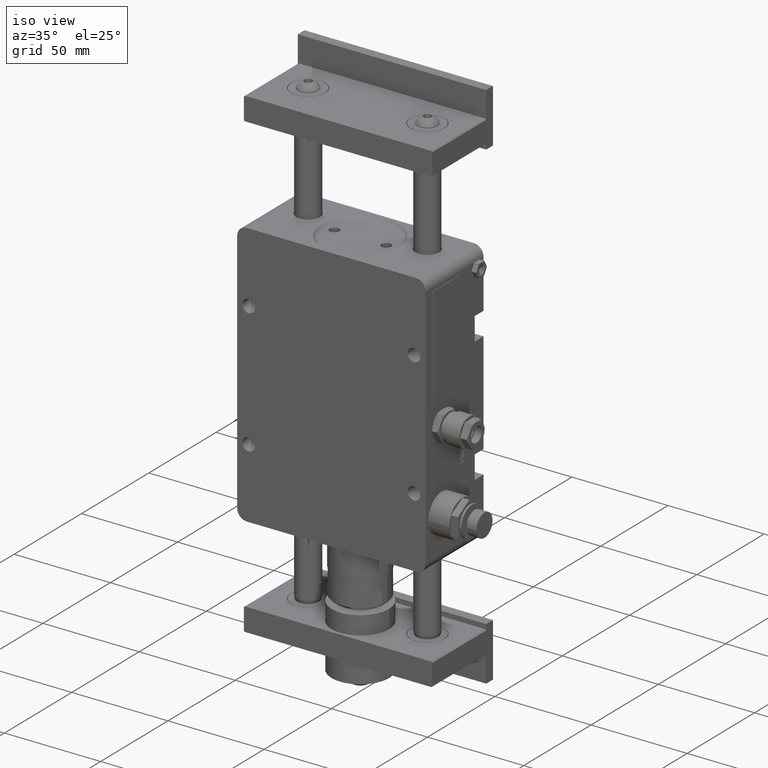
[diagram: clean part render]
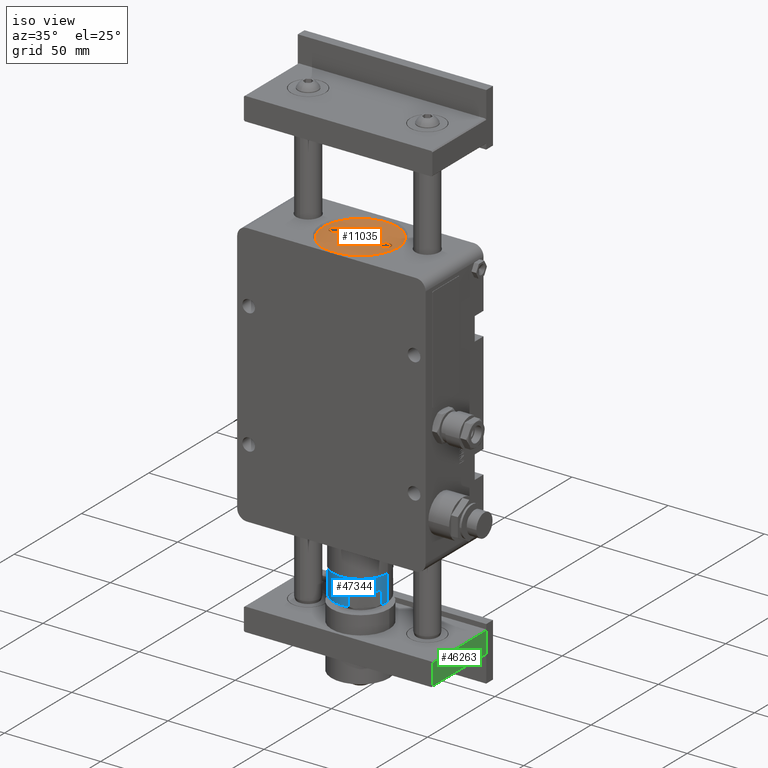
[diagram: same view with three faces highlighted in distinct colors, each labeled with its STEP entity id]
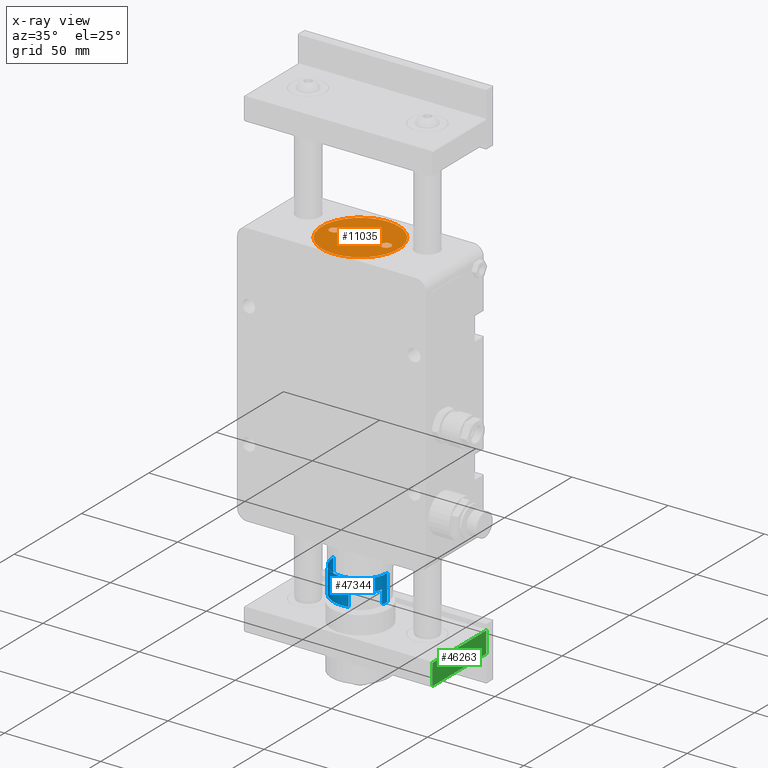
[diagram: x-ray of the same camera — body ghosted, the three highlighted faces saturated]
A machine part, iso view with three faces highlighted in distinct colors.
The next image is the same camera in x-ray (body ghosted, the three faces saturated) — at least one of them is partly hidden behind the body in this view.
Their STEP definitions:

[orange] entity #11035 — the highlighted planar face has unit normal (0, -0, -1).
#40 = ORIENTED_EDGE ( 'NONE', *, *, #48380, .F. ) ;
#671 = DIRECTION ( 'NONE',  ( -5.321418459584449281E-17, 1.476990324373995889E-32, 1.000000000000000000 ) ) ;
#733 = EDGE_LOOP ( 'NONE', ( #52822, #7169 ) ) ;
#1065 = CARTESIAN_POINT ( 'NONE',  ( 13.50000000000000000, 24.00000000000000000, 137.0000000000000000 ) ) ;
#1353 = EDGE_CURVE ( 'NONE', #38641, #21704, #10302, .T. ) ;
#2573 = DIRECTION ( 'NONE',  ( 0.000000000000000000, 1.000000000000000000, 0.000000000000000000 ) ) ;
#2911 = DIRECTION ( 'NONE',  ( 0.000000000000000000, -1.000000000000000000, 2.146269174704819951E-16 ) ) ;
#5834 = AXIS2_PLACEMENT_3D ( 'NONE', #42395, #671, #50914 ) ;
#5938 = CARTESIAN_POINT ( 'NONE',  ( -13.50000000000000000, 19.00000000000000000, 137.0000000000000000 ) ) ;
#6407 = CARTESIAN_POINT ( 'NONE',  ( 13.50000000000000000, 21.50000000000000000, 137.0000000000000000 ) ) ;
#7169 = ORIENTED_EDGE ( 'NONE', *, *, #8129, .F. ) ;
#7290 = CIRCLE ( 'NONE', #14316, 2.499999999999998668 ) ;
#8129 = EDGE_CURVE ( 'NONE', #21704, #38641, #33116, .T. ) ;
#8597 = DIRECTION ( 'NONE',  ( 0.000000000000000000, 1.000000000000000000, 0.000000000000000000 ) ) ;
#9730 = CARTESIAN_POINT ( 'NONE',  ( -13.50000000000000000, 24.00000000000000000, 137.0000000000000000 ) ) ;
#10302 = CIRCLE ( 'NONE', #30453, 2.499999999999998668 ) ;
#10859 = DIRECTION ( 'NONE',  ( 5.321418459584449281E-17, -2.146269174704819951E-16, -1.000000000000000000 ) ) ;
#11035 = ADVANCED_FACE ( 'NONE', ( #32522, #43836, #15784 ), #15506, .F. ) ;
#12619 = EDGE_LOOP ( 'NONE', ( #42573, #24361 ) ) ;
#13699 = VERTEX_POINT ( 'NONE', #16846 ) ;
#14316 = AXIS2_PLACEMENT_3D ( 'NONE', #23321, #49887, #19929 ) ;
#14572 = AXIS2_PLACEMENT_3D ( 'NONE', #52529, #48931, #28030 ) ;
#15496 = CIRCLE ( 'NONE', #47999, 2.499999999999998668 ) ;
#15506 = PLANE ( 'NONE',  #19317 ) ;
#15784 = FACE_OUTER_BOUND ( 'NONE', #12619, .T. ) ;
#15864 = ORIENTED_EDGE ( 'NONE', *, *, #42642, .F. ) ;
#15962 = VERTEX_POINT ( 'NONE', #38676 ) ;
#16846 = CARTESIAN_POINT ( 'NONE',  ( -2.650424395663544613E-15, 1.500000000000000000, 137.0000000000000000 ) ) ;
#18104 = CIRCLE ( 'NONE', #5834, 19.99999999999999645 ) ;
#19317 = AXIS2_PLACEMENT_3D ( 'NONE', #36377, #10859, #2911 ) ;
#19929 = DIRECTION ( 'NONE',  ( 0.000000000000000000, 1.000000000000000000, 0.000000000000000000 ) ) ;
#21704 = VERTEX_POINT ( 'NONE', #43212 ) ;
#23146 = DIRECTION ( 'NONE',  ( -5.321418459584449281E-17, 0.000000000000000000, 1.000000000000000000 ) ) ;
#23321 = CARTESIAN_POINT ( 'NONE',  ( -13.50000000000000000, 21.50000000000000000, 137.0000000000000000 ) ) ;
#24361 = ORIENTED_EDGE ( 'NONE', *, *, #47674, .T. ) ;
#27837 = AXIS2_PLACEMENT_3D ( 'NONE', #6407, #23146, #2573 ) ;
#28030 = DIRECTION ( 'NONE',  ( 2.775557561562890365E-16, 1.000000000000000000, 0.000000000000000000 ) ) ;
#28659 = DIRECTION ( 'NONE',  ( 0.000000000000000000, 1.000000000000000000, 0.000000000000000000 ) ) ;
#29454 = CARTESIAN_POINT ( 'NONE',  ( -13.50000000000000000, 21.50000000000000000, 137.0000000000000000 ) ) ;
#29963 = EDGE_LOOP ( 'NONE', ( #15864, #40 ) ) ;
#30453 = AXIS2_PLACEMENT_3D ( 'NONE', #41334, #32802, #28659 ) ;
#32178 = VERTEX_POINT ( 'NONE', #5938 ) ;
#32522 = FACE_BOUND ( 'NONE', #29963, .T. ) ;
#32802 = DIRECTION ( 'NONE',  ( -5.321418459584449281E-17, 0.000000000000000000, 1.000000000000000000 ) ) ;
#33116 = CIRCLE ( 'NONE', #27837, 2.499999999999998668 ) ;
#33868 = DIRECTION ( 'NONE',  ( -5.321418459584449281E-17, 0.000000000000000000, 1.000000000000000000 ) ) ;
#36377 = CARTESIAN_POINT ( 'NONE',  ( 5.030699218181878767E-15, 21.50000000000000000, 137.0000000000000000 ) ) ;
#38641 = VERTEX_POINT ( 'NONE', #1065 ) ;
#38676 = CARTESIAN_POINT ( 'NONE',  ( 1.058181434130765910E-14, 41.50000000000000000, 137.0000000000000000 ) ) ;
#40884 = VERTEX_POINT ( 'NONE', #9730 ) ;
#41334 = CARTESIAN_POINT ( 'NONE',  ( 13.50000000000000000, 21.50000000000000000, 137.0000000000000000 ) ) ;
#42395 = CARTESIAN_POINT ( 'NONE',  ( 5.030699218181878767E-15, 21.50000000000000000, 137.0000000000000000 ) ) ;
#42573 = ORIENTED_EDGE ( 'NONE', *, *, #49507, .T. ) ;
#42642 = EDGE_CURVE ( 'NONE', #40884, #32178, #7290, .T. ) ;
#43212 = CARTESIAN_POINT ( 'NONE',  ( 13.50000000000000000, 19.00000000000000000, 137.0000000000000000 ) ) ;
#43836 = FACE_BOUND ( 'NONE', #733, .T. ) ;
#47674 = EDGE_CURVE ( 'NONE', #13699, #15962, #47922, .T. ) ;
#47922 = CIRCLE ( 'NONE', #14572, 19.99999999999999645 ) ;
#47999 = AXIS2_PLACEMENT_3D ( 'NONE', #29454, #33868, #8597 ) ;
#48380 = EDGE_CURVE ( 'NONE', #32178, #40884, #15496, .T. ) ;
#48931 = DIRECTION ( 'NONE',  ( -5.321418459584449281E-17, 1.476990324373995889E-32, 1.000000000000000000 ) ) ;
#49507 = EDGE_CURVE ( 'NONE', #15962, #13699, #18104, .T. ) ;
#49887 = DIRECTION ( 'NONE',  ( -5.321418459584449281E-17, 0.000000000000000000, 1.000000000000000000 ) ) ;
#50914 = DIRECTION ( 'NONE',  ( 2.775557561562890365E-16, 1.000000000000000000, 0.000000000000000000 ) ) ;
#52529 = CARTESIAN_POINT ( 'NONE',  ( 5.030699218181878767E-15, 21.50000000000000000, 137.0000000000000000 ) ) ;
#52822 = ORIENTED_EDGE ( 'NONE', *, *, #1353, .F. ) ;

[blue] entity #47344 — the highlighted cylindrical surface (edge-blend (fillet) strip) has radius 14 mm, axis along (0, 0, 1).
#33 = ORIENTED_EDGE ( 'NONE', *, *, #39072, .T. ) ;
#519 = DIRECTION ( 'NONE',  ( 0.000000000000000000, 2.109042831733829873E-16, 1.000000000000000000 ) ) ;
#1071 = VERTEX_POINT ( 'NONE', #42752 ) ;
#2206 = DIRECTION ( 'NONE',  ( 2.574111338686239603E-17, -2.109042831733829873E-16, -1.000000000000000000 ) ) ;
#2271 = CARTESIAN_POINT ( 'NONE',  ( 14.00000000000000000, 21.50000000000000000, -30.50000000000000000 ) ) ;
#2284 = CARTESIAN_POINT ( 'NONE',  ( -14.00000000000000000, 21.50000000000000000, -17.00000000000000000 ) ) ;
#2659 = VECTOR ( 'NONE', #37808, 1000.000000000000000 ) ;
#4047 = CARTESIAN_POINT ( 'NONE',  ( -14.00000000000000000, 21.50000000000000000, 48.50000000000000000 ) ) ;
#4279 = CARTESIAN_POINT ( 'NONE',  ( 3.386261860645754851, 7.915699112168660179, 48.50000000000000000 ) ) ;
#4785 = VERTEX_POINT ( 'NONE', #16906 ) ;
#5850 = CARTESIAN_POINT ( 'NONE',  ( 7.851039582993020265E-16, 21.50000000000000000, -30.50000000000000000 ) ) ;
#6362 = DIRECTION ( 'NONE',  ( 0.000000000000000000, 2.109042831733829873E-16, 1.000000000000000000 ) ) ;
#7187 = CIRCLE ( 'NONE', #30848, 14.00000000000000000 ) ;
#7994 = EDGE_CURVE ( 'NONE', #22075, #1071, #15669, .T. ) ;
#8607 = AXIS2_PLACEMENT_3D ( 'NONE', #9660, #6362, #35194 ) ;
#9275 = AXIS2_PLACEMENT_3D ( 'NONE', #24246, #41013, #15751 ) ;
#9660 = CARTESIAN_POINT ( 'NONE',  ( 6.049161645912659970E-16, 21.50000000000000000, -23.50000000000000000 ) ) ;
#10868 = ORIENTED_EDGE ( 'NONE', *, *, #53681, .T. ) ;
#14706 = CARTESIAN_POINT ( 'NONE',  ( 4.375989275766605137E-16, 21.50000000000000000, -17.00000000000000000 ) ) ;
#15669 = CIRCLE ( 'NONE', #22695, 14.00000000000000000 ) ;
#15751 = DIRECTION ( 'NONE',  ( -1.000000000000000000, 0.000000000000000000, 0.000000000000000000 ) ) ;
#15804 = ORIENTED_EDGE ( 'NONE', *, *, #52944, .T. ) ;
#16055 = CARTESIAN_POINT ( 'NONE',  ( 14.00000000000000000, 21.50000000000000000, -17.00000000000000000 ) ) ;
#16145 = CARTESIAN_POINT ( 'NONE',  ( 13.58430088783138068, 18.11373813935430022, -30.50000000000000000 ) ) ;
#16906 = CARTESIAN_POINT ( 'NONE',  ( 3.386261860645754851, 7.915699112168640639, -23.50000000000000000 ) ) ;
#18260 = CIRCLE ( 'NONE', #8607, 14.00000000000000000 ) ;
#18332 = DIRECTION ( 'NONE',  ( -1.000000000000000000, 0.000000000000000000, 0.000000000000000000 ) ) ;
#18651 = VERTEX_POINT ( 'NONE', #39501 ) ;
#18931 = LINE ( 'NONE', #32352, #36916 ) ;
#22075 = VERTEX_POINT ( 'NONE', #53615 ) ;
#22597 = DIRECTION ( 'NONE',  ( -1.000000000000000000, 0.000000000000000000, 0.000000000000000000 ) ) ;
#22695 = AXIS2_PLACEMENT_3D ( 'NONE', #5850, #43217, #22597 ) ;
#24246 = CARTESIAN_POINT ( 'NONE',  ( -1.248443999262823781E-15, 21.50000000000000000, 48.50000000000000000 ) ) ;
#25510 = CARTESIAN_POINT ( 'NONE',  ( 14.00000000000000000, 21.50000000000000000, 48.50000000000000000 ) ) ;
#28089 = FACE_OUTER_BOUND ( 'NONE', #46347, .T. ) ;
#30848 = AXIS2_PLACEMENT_3D ( 'NONE', #41157, #519, #18332 ) ;
#32352 = CARTESIAN_POINT ( 'NONE',  ( 13.58430088783136114, 18.11373813935430022, 48.50000000000000000 ) ) ;
#32665 = ORIENTED_EDGE ( 'NONE', *, *, #37050, .F. ) ;
#32946 = VERTEX_POINT ( 'NONE', #16145 ) ;
#33144 = LINE ( 'NONE', #4047, #2659 ) ;
#35194 = DIRECTION ( 'NONE',  ( -1.000000000000000000, 0.000000000000000000, 0.000000000000000000 ) ) ;
#35241 = VECTOR ( 'NONE', #37773, 1000.000000000000000 ) ;
#36610 = CYLINDRICAL_SURFACE ( 'NONE', #9275, 14.00000000000000000 ) ;
#36916 = VECTOR ( 'NONE', #2206, 1000.000000000000000 ) ;
#37050 = EDGE_CURVE ( 'NONE', #22075, #39785, #33144, .T. ) ;
#37611 = DIRECTION ( 'NONE',  ( -2.574111338686239603E-17, 2.109042831733829873E-16, 1.000000000000000000 ) ) ;
#37773 = DIRECTION ( 'NONE',  ( -2.574111338686239603E-17, 2.109042831733829873E-16, 1.000000000000000000 ) ) ;
#37808 = DIRECTION ( 'NONE',  ( -2.574111338686239603E-17, 2.109042831733829873E-16, 1.000000000000000000 ) ) ;
#38580 = LINE ( 'NONE', #4279, #35241 ) ;
#39072 = EDGE_CURVE ( 'NONE', #18651, #32946, #18931, .T. ) ;
#39250 = EDGE_CURVE ( 'NONE', #32946, #46787, #7187, .T. ) ;
#39501 = CARTESIAN_POINT ( 'NONE',  ( 13.58430088783138068, 18.11373813935430022, -23.50000000000000000 ) ) ;
#39731 = ORIENTED_EDGE ( 'NONE', *, *, #7994, .T. ) ;
#39785 = VERTEX_POINT ( 'NONE', #2284 ) ;
#41013 = DIRECTION ( 'NONE',  ( 0.000000000000000000, 2.109042831733829873E-16, 1.000000000000000000 ) ) ;
#41157 = CARTESIAN_POINT ( 'NONE',  ( 7.851039582993020265E-16, 21.50000000000000000, -30.50000000000000000 ) ) ;
#41790 = EDGE_CURVE ( 'NONE', #1071, #4785, #38580, .T. ) ;
#42752 = CARTESIAN_POINT ( 'NONE',  ( 3.386261860645759736, 7.915699112168640639, -30.50000000000000000 ) ) ;
#43217 = DIRECTION ( 'NONE',  ( 0.000000000000000000, 2.109042831733829873E-16, 1.000000000000000000 ) ) ;
#44953 = ORIENTED_EDGE ( 'NONE', *, *, #51922, .F. ) ;
#46347 = EDGE_LOOP ( 'NONE', ( #49417, #15804, #44953, #32665, #39731, #50445, #10868, #33 ) ) ;
#46787 = VERTEX_POINT ( 'NONE', #2271 ) ;
#47344 = ADVANCED_FACE ( 'NONE', ( #28089 ), #36610, .T. ) ;
#48242 = DIRECTION ( 'NONE',  ( 0.000000000000000000, 2.109042831733829873E-16, 1.000000000000000000 ) ) ;
#48916 = VECTOR ( 'NONE', #37611, 1000.000000000000000 ) ;
#49417 = ORIENTED_EDGE ( 'NONE', *, *, #39250, .T. ) ;
#50445 = ORIENTED_EDGE ( 'NONE', *, *, #41790, .T. ) ;
#50724 = AXIS2_PLACEMENT_3D ( 'NONE', #14706, #48242, #52350 ) ;
#51074 = LINE ( 'NONE', #25510, #48916 ) ;
#51922 = EDGE_CURVE ( 'NONE', #39785, #52178, #52501, .T. ) ;
#52178 = VERTEX_POINT ( 'NONE', #16055 ) ;
#52350 = DIRECTION ( 'NONE',  ( -1.000000000000000000, 0.000000000000000000, 0.000000000000000000 ) ) ;
#52501 = CIRCLE ( 'NONE', #50724, 14.00000000000000000 ) ;
#52944 = EDGE_CURVE ( 'NONE', #46787, #52178, #51074, .T. ) ;
#53615 = CARTESIAN_POINT ( 'NONE',  ( -14.00000000000000000, 21.50000000000000000, -30.50000000000000000 ) ) ;
#53681 = EDGE_CURVE ( 'NONE', #4785, #18651, #18260, .T. ) ;

[green] entity #46263 — the highlighted planar face has unit normal (-1, 0, 0).
#3409 = DIRECTION ( 'NONE',  ( 0.000000000000000000, 0.000000000000000000, -1.000000000000000000 ) ) ;
#4427 = ORIENTED_EDGE ( 'NONE', *, *, #33119, .T. ) ;
#5193 = EDGE_CURVE ( 'NONE', #36397, #42468, #28606, .T. ) ;
#6131 = ORIENTED_EDGE ( 'NONE', *, *, #16643, .T. ) ;
#6850 = CARTESIAN_POINT ( 'NONE',  ( 49.00000000000000000, 4.999999999999900524, -43.50000000000000000 ) ) ;
#7237 = CARTESIAN_POINT ( 'NONE',  ( 49.00000000000000000, 45.00000000000000000, -43.00000000000000000 ) ) ;
#8900 = CARTESIAN_POINT ( 'NONE',  ( 49.00000000000000000, 45.00000000000000000, -54.50000000000000000 ) ) ;
#10970 = CARTESIAN_POINT ( 'NONE',  ( 49.00000000000000000, 4.999999999999900524, -43.50000000000000000 ) ) ;
#12175 = CARTESIAN_POINT ( 'NONE',  ( 49.00000000000000000, 45.00000000000000000, -43.50000000000000000 ) ) ;
#12482 = LINE ( 'NONE', #8900, #16965 ) ;
#12513 = VECTOR ( 'NONE', #23328, 1000.000000000000000 ) ;
#13048 = VECTOR ( 'NONE', #3409, 1000.000000000000000 ) ;
#14735 = LINE ( 'NONE', #35874, #32553 ) ;
#16643 = EDGE_CURVE ( 'NONE', #54110, #42468, #12482, .T. ) ;
#16886 = DIRECTION ( 'NONE',  ( 0.000000000000000000, 1.000000000000000000, 0.000000000000000000 ) ) ;
#16965 = VECTOR ( 'NONE', #16886, 1000.000000000000000 ) ;
#18282 = ORIENTED_EDGE ( 'NONE', *, *, #40228, .T. ) ;
#20262 = CARTESIAN_POINT ( 'NONE',  ( 49.00000000000000000, 4.999999999999900524, -54.50000000000000000 ) ) ;
#22455 = AXIS2_PLACEMENT_3D ( 'NONE', #44958, #49595, #29254 ) ;
#23328 = DIRECTION ( 'NONE',  ( 0.000000000000000000, -1.000000000000000000, 0.000000000000000000 ) ) ;
#23491 = EDGE_LOOP ( 'NONE', ( #4427, #6131, #45458, #18282 ) ) ;
#28606 = LINE ( 'NONE', #7237, #13048 ) ;
#29254 = DIRECTION ( 'NONE',  ( 0.000000000000000000, 0.000000000000000000, 1.000000000000000000 ) ) ;
#32553 = VECTOR ( 'NONE', #48527, 1000.000000000000000 ) ;
#33119 = EDGE_CURVE ( 'NONE', #40174, #54110, #14735, .T. ) ;
#35874 = CARTESIAN_POINT ( 'NONE',  ( 49.00000000000000000, 4.999999999999900524, -43.00000000000000000 ) ) ;
#36397 = VERTEX_POINT ( 'NONE', #12175 ) ;
#37223 = FACE_OUTER_BOUND ( 'NONE', #23491, .T. ) ;
#40174 = VERTEX_POINT ( 'NONE', #10970 ) ;
#40228 = EDGE_CURVE ( 'NONE', #36397, #40174, #40624, .T. ) ;
#40624 = LINE ( 'NONE', #6850, #12513 ) ;
#42468 = VERTEX_POINT ( 'NONE', #51921 ) ;
#44958 = CARTESIAN_POINT ( 'NONE',  ( 49.00000000000000000, 45.00000000000000000, -43.00000000000000000 ) ) ;
#45458 = ORIENTED_EDGE ( 'NONE', *, *, #5193, .F. ) ;
#46263 = ADVANCED_FACE ( 'NONE', ( #37223 ), #53729, .F. ) ;
#48527 = DIRECTION ( 'NONE',  ( 0.000000000000000000, 0.000000000000000000, -1.000000000000000000 ) ) ;
#49595 = DIRECTION ( 'NONE',  ( -1.000000000000000000, 0.000000000000000000, 0.000000000000000000 ) ) ;
#51921 = CARTESIAN_POINT ( 'NONE',  ( 49.00000000000000000, 45.00000000000000000, -54.50000000000000000 ) ) ;
#53729 = PLANE ( 'NONE',  #22455 ) ;
#54110 = VERTEX_POINT ( 'NONE', #20262 ) ;